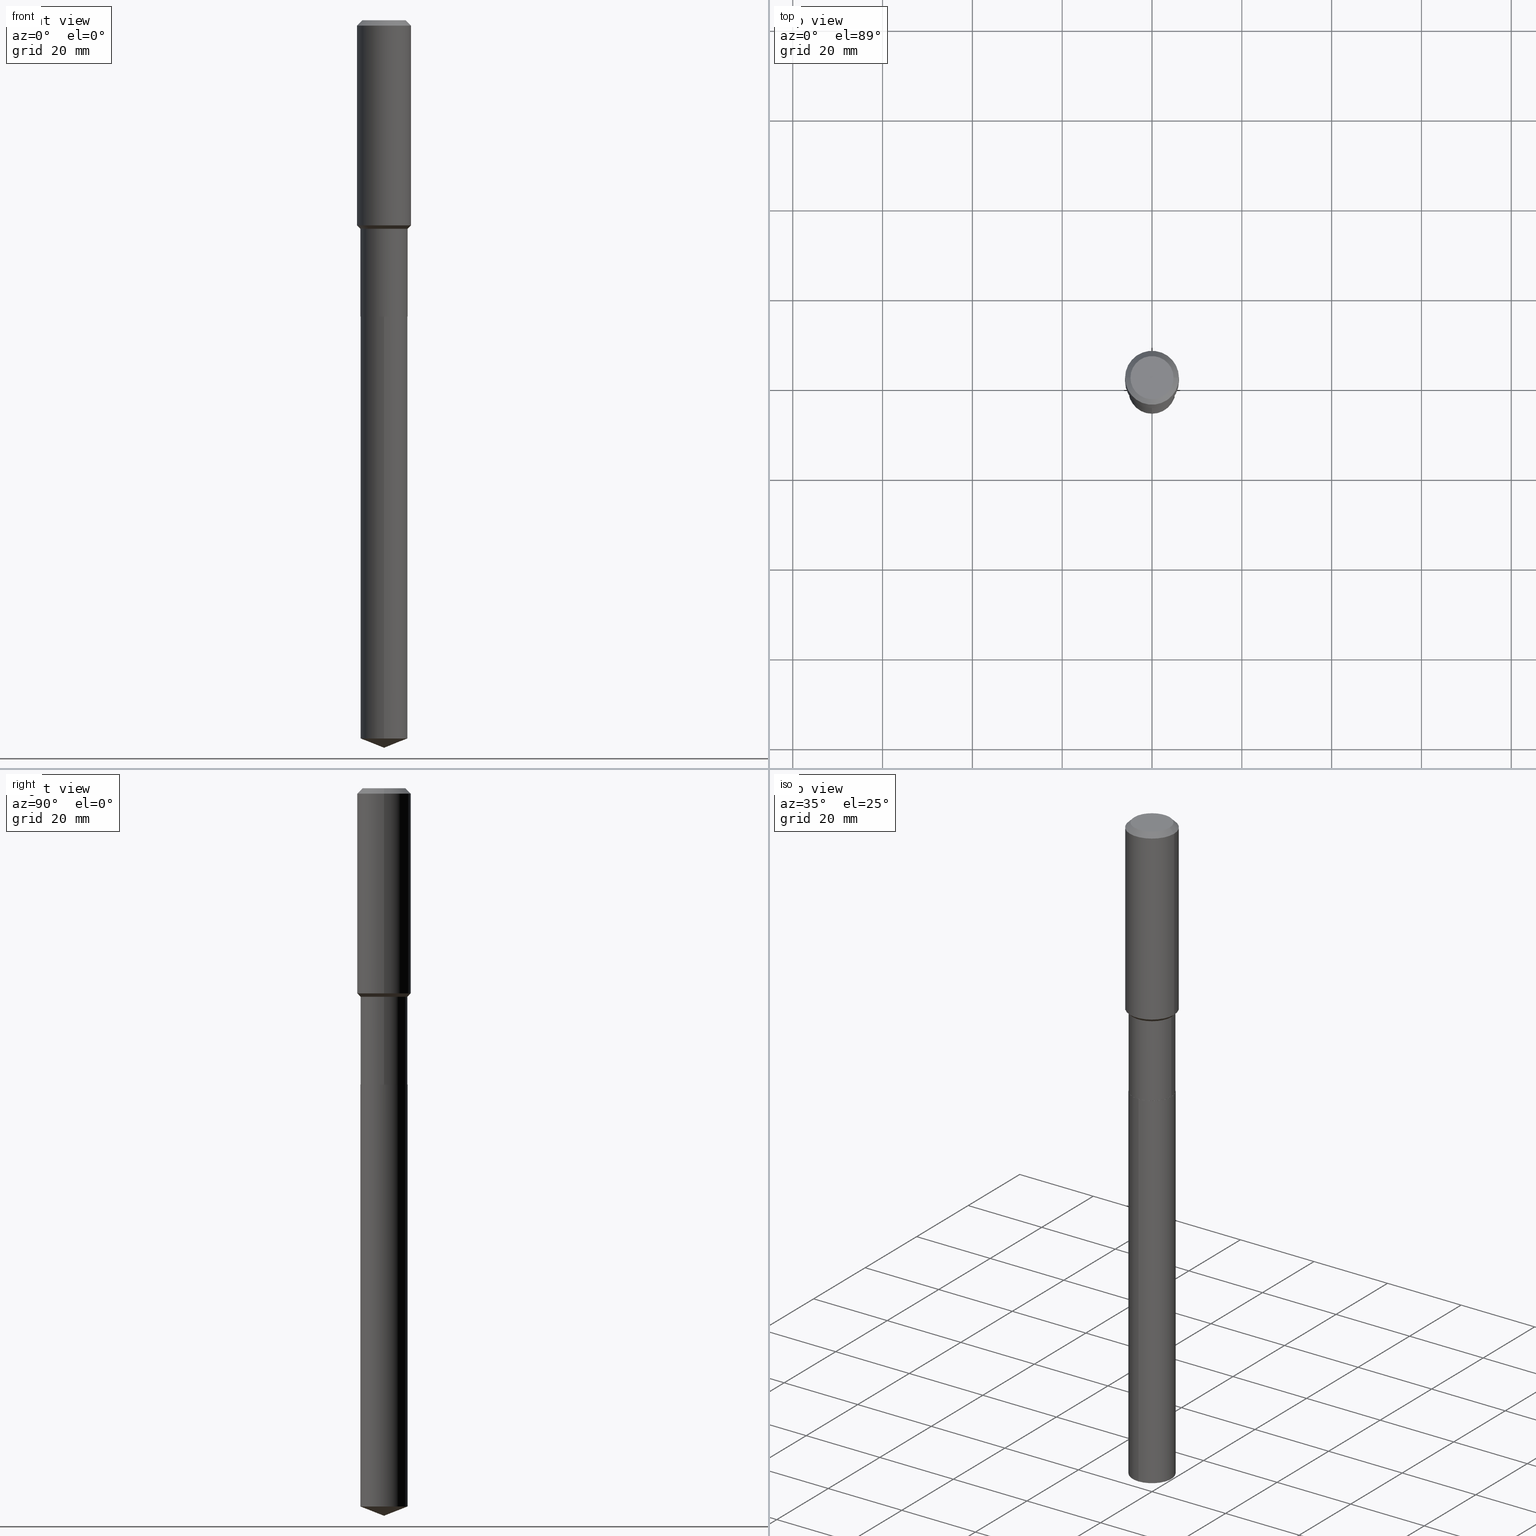
[diagram: canonical four-view strip — front | top / right | iso, engineering-drawing reading convention]
A machine part, canonical four-view strip (front | top / right | iso — engineering-drawing reading convention). The complete STEP part file that produces these views, byte-faithful:
ISO-10303-21;
HEADER;
FILE_DESCRIPTION (( 'STEP AP203' ),
    '1' );
FILE_NAME ('66681.STEP',
    '2024-04-25T03:34:13',
    ( '' ),
    ( '' ),
    'SwSTEP 2.0',
    'SolidWorks 2023',
    '' );
FILE_SCHEMA (( 'CONFIG_CONTROL_DESIGN' ));
ENDSEC;

DATA;
#1 = DIRECTION ( 'NONE',  ( -2.445468806185136597E-29, 3.491481338843145583E-15, 1.000000000000000000 ) ) ;
#2 = DIRECTION ( 'NONE',  ( -2.445468806185136597E-29, 3.491481338843145583E-15, 1.000000000000000000 ) ) ;
#3 = FACE_OUTER_BOUND ( 'NONE', #278, .T. ) ;
#4 = AXIS2_PLACEMENT_3D ( 'NONE', #208, #277, #324 ) ;
#5 = DIRECTION ( 'NONE',  ( -1.000000000000000000, 6.982962677686266711E-15, 0.000000000000000000 ) ) ;
#6 = ORIENTED_EDGE ( 'NONE', *, *, #317, .T. ) ;
#7 = CARTESIAN_POINT ( 'NONE',  ( 6.354306145991460877E-29, -9.072265110850034200E-15, -2.598400000000000709 ) ) ;
#8 = CARTESIAN_POINT ( 'NONE',  ( 0.2361999999999999933, -1.785387205520586782E-15, -0.04724000000000027483 ) ) ;
#9 = ADVANCED_BREP_SHAPE_REPRESENTATION ( '66681', ( #400, #398, #249 ), #129 ) ;
#10 = EDGE_CURVE ( 'NONE', #375, #441, #206, .T. ) ;
#11 = CARTESIAN_POINT ( 'NONE',  ( -0.2361999999999999933, -1.543357719111991223E-15, -0.04724000000000027483 ) ) ;
#12 =( LENGTH_UNIT ( ) NAMED_UNIT ( * ) SI_UNIT ( $, .METRE. ) );
#13 = CC_DESIGN_SECURITY_CLASSIFICATION ( #40, ( #285 ) ) ;
#14 = CARTESIAN_POINT ( 'NONE',  ( -4.713871149261273121E-47, 6.730158695841826722E-33, 1.927594061857931128E-18 ) ) ;
#15 = ADVANCED_FACE ( 'NONE', ( #363 ), #109, .T. ) ;
#16 = ADVANCED_FACE ( 'NONE', ( #404 ), #62, .T. ) ;
#17 = CALENDAR_DATE ( 2024, 24, 4 ) ;
#18 = PERSON_AND_ORGANIZATION ( #288, #362 ) ;
#19 = LINE ( 'NONE', #394, #330 ) ;
#20 = ORIENTED_EDGE ( 'NONE', *, *, #174, .F. ) ;
#21 = CC_DESIGN_APPROVAL ( #451, ( #245 ) ) ;
#22 = COORDINATED_UNIVERSAL_TIME_OFFSET ( 5, 0, .BEHIND. ) ;
#23 = LINE ( 'NONE', #150, #78 ) ;
#24 = ORIENTED_EDGE ( 'NONE', *, *, #239, .F. ) ;
#25 = SHAPE_DEFINITION_REPRESENTATION ( #95, #9 ) ;
#26 = CALENDAR_DATE ( 2024, 24, 4 ) ;
#27 = DIRECTION ( 'NONE',  ( -2.445449169258695004E-29, 3.491509460039474509E-15, 1.000000000000000000 ) ) ;
#28 = ORIENTED_EDGE ( 'NONE', *, *, #321, .F. ) ;
#29 = CIRCLE ( 'NONE', #297, 0.2067000000000000226 ) ;
#30 = CIRCLE ( 'NONE', #64, 0.2067000000000000226 ) ;
#31 = EDGE_CURVE ( 'NONE', #279, #339, #181, .T. ) ;
#32 = CARTESIAN_POINT ( 'NONE',  ( 1.155239464041865331E-30, -1.649375784469511612E-16, -0.04724000000000027483 ) ) ;
#33 = AXIS2_PLACEMENT_3D ( 'NONE', #432, #235, #97 ) ;
#34 = DIRECTION ( 'NONE',  ( -2.445449169258695004E-29, 3.491509460039474509E-15, 1.000000000000000000 ) ) ;
#35 = DIRECTION ( 'NONE',  ( -2.445468806185136597E-29, 3.491481338843145583E-15, 1.000000000000000000 ) ) ;
#36 = VECTOR ( 'NONE', #323, 39.37007874015748143 ) ;
#37 = EDGE_CURVE ( 'NONE', #385, #77, #303, .T. ) ;
#38 = DIRECTION ( 'NONE',  ( 6.982962677686265922E-15, 1.000000000000000000, -3.491509460039474509E-15 ) ) ;
#39 = EDGE_CURVE ( 'NONE', #339, #385, #110, .T. ) ;
#40 = SECURITY_CLASSIFICATION ( '', '', #314 ) ;
#41 = CARTESIAN_POINT ( 'NONE',  ( 6.354306145991460877E-29, -9.072265110850034200E-15, -2.598400000000000709 ) ) ;
#42 = EDGE_LOOP ( 'NONE', ( #189, #6, #395 ) ) ;
#43 = DIRECTION ( 'NONE',  ( -2.445449169258695004E-29, 3.491509460039474509E-15, 1.000000000000000000 ) ) ;
#44 = DIRECTION ( 'NONE',  ( -2.445468806185136877E-29, 3.491481338843145188E-15, 1.000000000000000000 ) ) ;
#45 = ORIENTED_EDGE ( 'NONE', *, *, #359, .F. ) ;
#46 = CARTESIAN_POINT ( 'NONE',  ( 0.2062000000000000222, -1.051215201498894083E-14, -2.598400000000000709 ) ) ;
#47 = CARTESIAN_POINT ( 'NONE',  ( -8.068064506756283072E-28, 1.151925772486896208E-13, 32.99217874015747753 ) ) ;
#48 = ORIENTED_EDGE ( 'NONE', *, *, #486, .F. ) ;
#49 = CARTESIAN_POINT ( 'NONE',  ( -8.068064506756283072E-28, 1.151925772486896208E-13, 32.99217874015747753 ) ) ;
#50 = VECTOR ( 'NONE', #160, 39.37007874015748143 ) ;
#51 = DIRECTION ( 'NONE',  ( -2.445468806185136597E-29, 3.491481338843145583E-15, 1.000000000000000000 ) ) ;
#52 = LINE ( 'NONE', #194, #212 ) ;
#53 = ORIENTED_EDGE ( 'NONE', *, *, #59, .F. ) ;
#54 = DIRECTION ( 'NONE',  ( -2.445468806185136877E-29, 3.491481338843145188E-15, 1.000000000000000000 ) ) ;
#55 = CIRCLE ( 'NONE', #392, 0.2066999999999999116 ) ;
#56 = DIRECTION ( 'NONE',  ( -6.982962677686265133E-15, -1.000000000000000000, 2.643297526525653668E-15 ) ) ;
#57 = EDGE_CURVE ( 'NONE', #352, #339, #271, .T. ) ;
#58 = FACE_OUTER_BOUND ( 'NONE', #481, .T. ) ;
#59 = EDGE_CURVE ( 'NONE', #279, #166, #55, .T. ) ;
#60 = APPLICATION_PROTOCOL_DEFINITION ( 'international standard', 'config_control_design', 1994, #258 ) ;
#61 = MECHANICAL_CONTEXT ( 'NONE', #258, 'mechanical' ) ;
#62 = CONICAL_SURFACE ( 'NONE', #325, 0.2361999999999999933, 0.7853981633974452814 ) ;
#63 = DIRECTION ( 'NONE',  ( 0.7071067811864267805, -2.468850131080992517E-15, 0.7071067811866682540 ) ) ;
#64 = AXIS2_PLACEMENT_3D ( 'NONE', #123, #192, #56 ) ;
#65 = CALENDAR_DATE ( 2024, 24, 4 ) ;
#66 = ORIENTED_EDGE ( 'NONE', *, *, #37, .T. ) ;
#67 = APPROVAL_DATE_TIME ( #315, #122 ) ;
#68 = ADVANCED_FACE ( 'NONE', ( #120 ), #319, .T. ) ;
#69 = APPROVAL ( #397, 'UNSPECIFIED' ) ;
#70 = FACE_OUTER_BOUND ( 'NONE', #42, .T. ) ;
#71 = ORIENTED_EDGE ( 'NONE', *, *, #239, .T. ) ;
#72 = AXIS2_PLACEMENT_3D ( 'NONE', #449, #115, #86 ) ;
#73 = CARTESIAN_POINT ( 'NONE',  ( 4.469583337064576650E-29, -6.381380443003620525E-15, -1.827700000000000768 ) ) ;
#74 = DIRECTION ( 'NONE',  ( 2.445468806185136597E-29, -3.491481338843145583E-15, -1.000000000000000000 ) ) ;
#75 = ORIENTED_EDGE ( 'NONE', *, *, #406, .F. ) ;
#76 = LINE ( 'NONE', #223, #93 ) ;
#77 = VERTEX_POINT ( 'NONE', #299 ) ;
#78 = VECTOR ( 'NONE', #146, 39.37007874015748143 ) ;
#79 = CARTESIAN_POINT ( 'NONE',  ( 0.000000000000000000, 0.000000000000000000, 0.000000000000000000 ) ) ;
#80 = ORIENTED_EDGE ( 'NONE', *, *, #307, .T. ) ;
#81 = DIRECTION ( 'NONE',  ( -2.445468806185136597E-29, 3.491481338843145583E-15, 1.000000000000000000 ) ) ;
#82 = CYLINDRICAL_SURFACE ( 'NONE', #251, 0.2362000000000001043 ) ;
#83 = EDGE_CURVE ( 'NONE', #441, #279, #76, .T. ) ;
#84 = ORIENTED_EDGE ( 'NONE', *, *, #487, .T. ) ;
#85 = ADVANCED_FACE ( 'NONE', ( #380 ), #372, .F. ) ;
#86 = DIRECTION ( 'NONE',  ( 1.000000000000000000, -6.982962677686265922E-15, 4.876176775795935793E-29 ) ) ;
#87 = CLOSED_SHELL ( 'NONE', ( #15, #423, #141, #322, #91 ) ) ;
#88 = EDGE_LOOP ( 'NONE', ( #281, #420, #335, #215 ) ) ;
#89 = CARTESIAN_POINT ( 'NONE',  ( 4.469583337064576650E-29, -6.381380443003620525E-15, -1.827700000000000768 ) ) ;
#90 = VECTOR ( 'NONE', #410, 39.37007874015748854 ) ;
#91 = ADVANCED_FACE ( 'NONE', ( #116 ), #454, .F. ) ;
#92 = CARTESIAN_POINT ( 'NONE',  ( 6.354306145991460877E-29, -9.072265110850034200E-15, -2.598400000000000709 ) ) ;
#93 = VECTOR ( 'NONE', #44, 39.37007874015748143 ) ;
#94 = DATE_AND_TIME ( #26, #173 ) ;
#95 = PRODUCT_DEFINITION_SHAPE ( 'NONE', 'NONE',  #245 ) ;
#96 = ORIENTED_EDGE ( 'NONE', *, *, #57, .F. ) ;
#97 = DIRECTION ( 'NONE',  ( 1.000000000000000000, -6.982962677686266711E-15, 0.000000000000000000 ) ) ;
#98 = PERSON_AND_ORGANIZATION_ROLE ( 'classification_officer' ) ;
#99 = FACE_OUTER_BOUND ( 'NONE', #266, .T. ) ;
#100 = DATE_AND_TIME ( #17, #316 ) ;
#101 = EDGE_CURVE ( 'NONE', #166, #279, #152, .T. ) ;
#102 = ORIENTED_EDGE ( 'NONE', *, *, #101, .F. ) ;
#103 = DATE_TIME_ROLE ( 'creation_date' ) ;
#104 = ORIENTED_EDGE ( 'NONE', *, *, #59, .T. ) ;
#105 = CC_DESIGN_APPROVAL ( #122, ( #40 ) ) ;
#106 = ADVANCED_FACE ( 'NONE', ( #262 ), #82, .T. ) ;
#107 = CARTESIAN_POINT ( 'NONE',  ( 4.397442007282113695E-29, -6.278381743507746292E-15, -1.798200000000000465 ) ) ;
#108 = PRODUCT_RELATED_PRODUCT_CATEGORY ( 'detail', '', ( #168 ) ) ;
#109 = CYLINDRICAL_SURFACE ( 'NONE', #253, 0.2067000000000000226 ) ;
#110 = LINE ( 'NONE', #356, #474 ) ;
#111 = CC_DESIGN_APPROVAL ( #69, ( #285 ) ) ;
#112 = DIRECTION ( 'NONE',  ( 1.000000000000000000, -6.982962677686266711E-15, 0.000000000000000000 ) ) ;
#113 = AXIS2_PLACEMENT_3D ( 'NONE', #334, #342, #38 ) ;
#114 = VERTEX_POINT ( 'NONE', #228 ) ;
#115 = DIRECTION ( 'NONE',  ( -2.445468806185136597E-29, 3.491481338843145583E-15, 1.000000000000000000 ) ) ;
#116 = FACE_OUTER_BOUND ( 'NONE', #460, .T. ) ;
#117 = EDGE_LOOP ( 'NONE', ( #158, #124, #102, #48 ) ) ;
#118 = DIRECTION ( 'NONE',  ( 1.000000000000000000, -6.982962677686265922E-15, 4.876176775795935793E-29 ) ) ;
#119 = EDGE_CURVE ( 'NONE', #339, #352, #350, .T. ) ;
#120 = FACE_OUTER_BOUND ( 'NONE', #306, .T. ) ;
#121 = VERTEX_POINT ( 'NONE', #435 ) ;
#122 = APPROVAL ( #434, 'UNSPECIFIED' ) ;
#123 = CARTESIAN_POINT ( 'NONE',  ( 6.354306145991460877E-29, -9.072265110850034200E-15, -2.598400000000000709 ) ) ;
#124 = ORIENTED_EDGE ( 'NONE', *, *, #83, .T. ) ;
#125 = DIRECTION ( 'NONE',  ( -2.445468806185136597E-29, 3.491481338843145583E-15, 1.000000000000000000 ) ) ;
#126 = DIRECTION ( 'NONE',  ( 1.000000000000000000, -6.982962677686266711E-15, 0.000000000000000000 ) ) ;
#127 = ORIENTED_EDGE ( 'NONE', *, *, #305, .F. ) ;
#128 = DIRECTION ( 'NONE',  ( 1.000000000000000000, -6.982962677686262766E-15, 0.000000000000000000 ) ) ;
#129 =( GEOMETRIC_REPRESENTATION_CONTEXT ( 3 ) GLOBAL_UNCERTAINTY_ASSIGNED_CONTEXT ( ( #136 ) ) GLOBAL_UNIT_ASSIGNED_CONTEXT ( ( #472, #139, #137 ) ) REPRESENTATION_CONTEXT ( 'NONE', 'WORKASPACE' ) );
#130 = DIRECTION ( 'NONE',  ( 1.000000000000000000, -6.982962677686266711E-15, 4.876176775795935793E-29 ) ) ;
#131 = ORIENTED_EDGE ( 'NONE', *, *, #346, .T. ) ;
#132 = CARTESIAN_POINT ( 'NONE',  ( -0.2062000000000000222, -7.604476762538596061E-15, -2.598400000000000709 ) ) ;
#133 = LENGTH_MEASURE_WITH_UNIT ( LENGTH_MEASURE( 0.02539999999999999897 ), #12 );
#134 = COORDINATED_UNIVERSAL_TIME_OFFSET ( 5, 0, .BEHIND. ) ;
#135 = AXIS2_PLACEMENT_3D ( 'NONE', #79, #225, #118 ) ;
#136 = UNCERTAINTY_MEASURE_WITH_UNIT (LENGTH_MEASURE( 1.000000000000000082E-05 ), #472, 'distance_accuracy_value', 'NONE');
#137 =( NAMED_UNIT ( * ) SI_UNIT ( $, .STERADIAN. ) SOLID_ANGLE_UNIT ( ) );
#138 = DIRECTION ( 'NONE',  ( 1.000000000000000000, -6.982962677686265133E-15, 0.000000000000000000 ) ) ;
#139 =( NAMED_UNIT ( * ) PLANE_ANGLE_UNIT ( ) SI_UNIT ( $, .RADIAN. ) );
#140 = ORIENTED_EDGE ( 'NONE', *, *, #156, .T. ) ;
#141 = ADVANCED_FACE ( 'NONE', ( #70 ), #182, .T. ) ;
#142 = DIRECTION ( 'NONE',  ( -6.982962677686265133E-15, -1.000000000000000000, 2.643297526525653668E-15 ) ) ;
#143 = ORIENTED_EDGE ( 'NONE', *, *, #270, .T. ) ;
#144 = CARTESIAN_POINT ( 'NONE',  ( 1.155239464041865331E-30, -1.649375784469511612E-16, -0.04724000000000027483 ) ) ;
#145 = AXIS2_PLACEMENT_3D ( 'NONE', #213, #445, #254 ) ;
#146 = DIRECTION ( 'NONE',  ( -2.445449169258695004E-29, 3.491509460039474509E-15, 1.000000000000000000 ) ) ;
#147 = ORIENTED_EDGE ( 'NONE', *, *, #486, .T. ) ;
#148 = VECTOR ( 'NONE', #54, 39.37007874015748143 ) ;
#149 = CC_DESIGN_DATE_AND_TIME_ASSIGNMENT ( #94, #176, ( #40 ) ) ;
#150 = CARTESIAN_POINT ( 'NONE',  ( 1.468691834816190551E-15, 0.2066999999999909188, -2.598400000000001597 ) ) ;
#151 = VERTEX_POINT ( 'NONE', #443 ) ;
#152 = CIRCLE ( 'NONE', #415, 0.2066999999999999116 ) ;
#153 = FACE_OUTER_BOUND ( 'NONE', #344, .T. ) ;
#154 = VERTEX_POINT ( 'NONE', #446 ) ;
#155 = CARTESIAN_POINT ( 'NONE',  ( -9.427742298522546243E-47, 1.346031739168365344E-32, 3.855188123715862256E-18 ) ) ;
#156 = EDGE_CURVE ( 'NONE', #436, #151, #186, .T. ) ;
#157 = DIRECTION ( 'NONE',  ( 0.7071067811865471286, -2.468850131082252722E-15, 0.7071067811865479058 ) ) ;
#158 = ORIENTED_EDGE ( 'NONE', *, *, #10, .T. ) ;
#159 = APPROVAL_PERSON_ORGANIZATION ( #202, #451, #205 ) ;
#160 = DIRECTION ( 'NONE',  ( -2.445468806185136877E-29, 3.491481338843145188E-15, 1.000000000000000000 ) ) ;
#161 = VERTEX_POINT ( 'NONE', #478 ) ;
#162 = CARTESIAN_POINT ( 'NONE',  ( 6.353083411588368076E-29, -9.070519370180611907E-15, -2.597900000000000542 ) ) ;
#163 = ORIENTED_EDGE ( 'NONE', *, *, #383, .T. ) ;
#164 = CC_DESIGN_PERSON_AND_ORGANIZATION_ASSIGNMENT ( #269, #429, ( #285 ) ) ;
#165 = CARTESIAN_POINT ( 'NONE',  ( 0.2362000000000001043, -1.649375784469496920E-15, 1.151752954443000508E-29 ) ) ;
#166 = VERTEX_POINT ( 'NONE', #338 ) ;
#167 = CIRCLE ( 'NONE', #340, 0.2067000000000000226 ) ;
#168 = PRODUCT ( '66681', '66681', '', ( #61 ) ) ;
#169 = DIRECTION ( 'NONE',  ( 2.438088387897960049E-29, -3.491481338843145188E-15, -1.000000000000000000 ) ) ;
#170 = CALENDAR_DATE ( 2024, 24, 4 ) ;
#171 = CIRCLE ( 'NONE', #204, 0.2067000000000000226 ) ;
#172 = PERSON_AND_ORGANIZATION_ROLE ( 'creator' ) ;
#173 = LOCAL_TIME ( 23, 34, 13.00000000000000000, #134 ) ;
#174 = EDGE_CURVE ( 'NONE', #77, #385, #458, .T. ) ;
#175 = ORIENTED_EDGE ( 'NONE', *, *, #336, .F. ) ;
#176 = DATE_TIME_ROLE ( 'classification_date' ) ;
#177 = DIRECTION ( 'NONE',  ( -6.982962677686266711E-15, -1.000000000000000000, 3.498627837350010928E-15 ) ) ;
#178 = ORIENTED_EDGE ( 'NONE', *, *, #257, .T. ) ;
#179 = ORIENTED_EDGE ( 'NONE', *, *, #83, .F. ) ;
#180 = CONICAL_SURFACE ( 'NONE', #224, 0.2066999999999999116, 0.7853981633974477239 ) ;
#181 = LINE ( 'NONE', #447, #36 ) ;
#182 = CONICAL_SURFACE ( 'NONE', #480, 99.94676754583977640, 1.195550537616118847 ) ;
#183 = ORIENTED_EDGE ( 'NONE', *, *, #369, .F. ) ;
#184 = CARTESIAN_POINT ( 'NONE',  ( 6.354306145991460877E-29, -9.072265110850034200E-15, -2.598400000000000709 ) ) ;
#185 = ADVANCED_FACE ( 'NONE', ( #99 ), #244, .T. ) ;
#186 = CIRCLE ( 'NONE', #236, 0.1889600000000000168 ) ;
#187 = CC_DESIGN_PERSON_AND_ORGANIZATION_ASSIGNMENT ( #470, #98, ( #40 ) ) ;
#188 = CARTESIAN_POINT ( 'NONE',  ( -0.2066999999999999671, -6.257258071775987591E-15, -2.597900000000000542 ) ) ;
#189 = ORIENTED_EDGE ( 'NONE', *, *, #383, .F. ) ;
#190 = DIRECTION ( 'NONE',  ( -2.445468806185136597E-29, 3.491481338843145583E-15, 1.000000000000000000 ) ) ;
#191 = CONICAL_SURFACE ( 'NONE', #355, 99.94676754583977640, 1.195550537616118847 ) ;
#192 = DIRECTION ( 'NONE',  ( -2.445449169258695004E-29, 3.491509460039474509E-15, 1.000000000000000000 ) ) ;
#193 = CARTESIAN_POINT ( 'NONE',  ( 1.155239464041865331E-30, -1.649375784469511612E-16, -0.04724000000000027483 ) ) ;
#194 = CARTESIAN_POINT ( 'NONE',  ( -1.443378385477687712E-15, -0.2067000000000090987, -2.598400000000000265 ) ) ;
#195 = ORIENTED_EDGE ( 'NONE', *, *, #283, .F. ) ;
#196 = DIRECTION ( 'NONE',  ( -6.982962677686266711E-15, -1.000000000000000000, 3.498627837350010928E-15 ) ) ;
#197 = AXIS2_PLACEMENT_3D ( 'NONE', #144, #284, #112 ) ;
#198 = EDGE_LOOP ( 'NONE', ( #255, #104, #463, #358 ) ) ;
#199 = LOCAL_TIME ( 23, 34, 13.00000000000000000, #248 ) ;
#200 = DIRECTION ( 'NONE',  ( -2.445468806185136597E-29, 3.491481338843145583E-15, 1.000000000000000000 ) ) ;
#201 = ORIENTED_EDGE ( 'NONE', *, *, #399, .T. ) ;
#202 = PERSON_AND_ORGANIZATION ( #288, #362 ) ;
#203 = CC_DESIGN_PERSON_AND_ORGANIZATION_ASSIGNMENT ( #18, #438, ( #245 ) ) ;
#204 = AXIS2_PLACEMENT_3D ( 'NONE', #440, #219, #331 ) ;
#205 = APPROVAL_ROLE ( '' ) ;
#206 = CIRCLE ( 'NONE', #145, 0.2067000000000000226 ) ;
#207 = VECTOR ( 'NONE', #384, 39.37007874015748143 ) ;
#208 = CARTESIAN_POINT ( 'NONE',  ( -9.427742298522546243E-47, 1.346031739168365344E-32, 3.855188123715862256E-18 ) ) ;
#209 = ORIENTED_EDGE ( 'NONE', *, *, #31, .T. ) ;
#210 = DESIGN_CONTEXT ( 'detailed design', #347, 'design' ) ;
#211 = PERSON_AND_ORGANIZATION ( #288, #362 ) ;
#212 = VECTOR ( 'NONE', #428, 39.37007874015748143 ) ;
#213 = CARTESIAN_POINT ( 'NONE',  ( 6.353083411588368076E-29, -9.070519370180611907E-15, -2.597900000000000542 ) ) ;
#214 = ORIENTED_EDGE ( 'NONE', *, *, #448, .T. ) ;
#215 = ORIENTED_EDGE ( 'NONE', *, *, #37, .F. ) ;
#216 = AXIS2_PLACEMENT_3D ( 'NONE', #7, #190, #427 ) ;
#217 = CARTESIAN_POINT ( 'NONE',  ( 1.539776964222985142E-28, -2.198414189224705960E-14, -6.296478704690392725 ) ) ;
#218 = DIRECTION ( 'NONE',  ( -2.445468806185136877E-29, 3.491481338843145188E-15, 1.000000000000000000 ) ) ;
#219 = DIRECTION ( 'NONE',  ( -2.445449169258695004E-29, 3.491509460039474509E-15, 1.000000000000000000 ) ) ;
#220 = DIRECTION ( 'NONE',  ( 1.000000000000000000, -6.982962677686266711E-15, 4.876176775795935793E-29 ) ) ;
#221 = DIRECTION ( 'NONE',  ( -6.982962677686265133E-15, -1.000000000000000000, 5.286595053051307336E-15 ) ) ;
#222 = EDGE_CURVE ( 'NONE', #121, #161, #52, .T. ) ;
#223 = CARTESIAN_POINT ( 'NONE',  ( -0.2066999999999999393, 1.468691834816126653E-15, -1.016743883155688725E-29 ) ) ;
#224 = AXIS2_PLACEMENT_3D ( 'NONE', #89, #333, #300 ) ;
#225 = DIRECTION ( 'NONE',  ( -2.445468806185136597E-29, 3.491481338843145583E-15, 1.000000000000000000 ) ) ;
#226 = ORIENTED_EDGE ( 'NONE', *, *, #283, .T. ) ;
#227 = FACE_OUTER_BOUND ( 'NONE', #413, .T. ) ;
#228 = CARTESIAN_POINT ( 'NONE',  ( 1.559683025661503327E-28, -2.226849818518576806E-14, -6.377900000000001235 ) ) ;
#229 = CARTESIAN_POINT ( 'NONE',  ( -0.2361999999999999933, 1.484438206022545019E-15, -0.04724000000000027483 ) ) ;
#230 = CARTESIAN_POINT ( 'NONE',  ( 4.397442007282113695E-29, -6.278381743507746292E-15, -1.798200000000000465 ) ) ;
#231 = ORIENTED_EDGE ( 'NONE', *, *, #307, .F. ) ;
#232 = CIRCLE ( 'NONE', #471, 0.2062000000000000222 ) ;
#233 = CARTESIAN_POINT ( 'NONE',  ( 1.468691834816282059E-15, 0.2066999999999909743, -2.598400000000001597 ) ) ;
#234 = ADVANCED_FACE ( 'NONE', ( #58 ), #343, .F. ) ;
#235 = DIRECTION ( 'NONE',  ( -2.445468806185136597E-29, 3.491481338843145583E-15, 1.000000000000000000 ) ) ;
#236 = AXIS2_PLACEMENT_3D ( 'NONE', #155, #35, #328 ) ;
#237 = LINE ( 'NONE', #229, #241 ) ;
#238 = PERSON_AND_ORGANIZATION ( #288, #362 ) ;
#239 = EDGE_CURVE ( 'NONE', #151, #77, #272, .T. ) ;
#240 = APPROVAL_ROLE ( '' ) ;
#241 = VECTOR ( 'NONE', #294, 39.37007874015748143 ) ;
#242 = CARTESIAN_POINT ( 'NONE',  ( 0.000000000000000000, 0.000000000000000000, 0.000000000000000000 ) ) ;
#243 = APPROVAL_ROLE ( '' ) ;
#244 = CYLINDRICAL_SURFACE ( 'NONE', #311, 0.2362000000000001043 ) ;
#245 = PRODUCT_DEFINITION ( 'UNKNOWN', '', #285, #210 ) ;
#246 = LINE ( 'NONE', #483, #280 ) ;
#247 = ORIENTED_EDGE ( 'NONE', *, *, #305, .T. ) ;
#248 = COORDINATED_UNIVERSAL_TIME_OFFSET ( 5, 0, .BEHIND. ) ;
#249 = AXIS2_PLACEMENT_3D ( 'NONE', #273, #276, #475 ) ;
#250 = ORIENTED_EDGE ( 'NONE', *, *, #222, .T. ) ;
#251 = AXIS2_PLACEMENT_3D ( 'NONE', #419, #51, #220 ) ;
#252 = DIRECTION ( 'NONE',  ( 1.000000000000000000, -6.982962677686266711E-15, 0.000000000000000000 ) ) ;
#253 = AXIS2_PLACEMENT_3D ( 'NONE', #320, #286, #142 ) ;
#254 = DIRECTION ( 'NONE',  ( 1.000000000000000000, -6.982962677686269866E-15, 0.000000000000000000 ) ) ;
#255 = ORIENTED_EDGE ( 'NONE', *, *, #31, .F. ) ;
#256 = VERTEX_POINT ( 'NONE', #132 ) ;
#257 = EDGE_CURVE ( 'NONE', #154, #121, #171, .T. ) ;
#258 = APPLICATION_CONTEXT ( 'configuration controlled 3d designs of mechanical parts and assemblies' ) ;
#259 = CARTESIAN_POINT ( 'NONE',  ( 1.559693320064520861E-28, -2.226835204495268597E-14, -6.377900000000001235 ) ) ;
#260 = CIRCLE ( 'NONE', #4, 0.1889600000000000168 ) ;
#261 = CARTESIAN_POINT ( 'NONE',  ( 6.354306145991460877E-29, -9.072265110850034200E-15, -2.598400000000000709 ) ) ;
#262 = FACE_OUTER_BOUND ( 'NONE', #88, .T. ) ;
#263 = ORIENTED_EDGE ( 'NONE', *, *, #270, .F. ) ;
#264 = LINE ( 'NONE', #165, #148 ) ;
#265 = DIRECTION ( 'NONE',  ( 2.445468806185136597E-29, -3.491481338843145583E-15, -1.000000000000000000 ) ) ;
#266 = EDGE_LOOP ( 'NONE', ( #409, #326, #20, #75 ) ) ;
#267 = DIRECTION ( 'NONE',  ( 1.000000000000000000, -6.982962677686269866E-15, 0.000000000000000000 ) ) ;
#268 = LINE ( 'NONE', #337, #50 ) ;
#269 = PERSON_AND_ORGANIZATION ( #288, #362 ) ;
#270 = EDGE_CURVE ( 'NONE', #121, #154, #418, .T. ) ;
#271 = CIRCLE ( 'NONE', #467, 0.2362000000000002153 ) ;
#272 = LINE ( 'NONE', #8, #466 ) ;
#273 = CARTESIAN_POINT ( 'NONE',  ( 0.000000000000000000, 0.000000000000000000, 0.000000000000000000 ) ) ;
#274 = PERSON_AND_ORGANIZATION ( #288, #362 ) ;
#275 = AXIS2_PLACEMENT_3D ( 'NONE', #184, #291, #329 ) ;
#276 = DIRECTION ( 'NONE',  ( 0.000000000000000000, 0.000000000000000000, 1.000000000000000000 ) ) ;
#277 = DIRECTION ( 'NONE',  ( -2.445468806185136597E-29, 3.491481338843145583E-15, 1.000000000000000000 ) ) ;
#278 = EDGE_LOOP ( 'NONE', ( #430, #163, #263 ) ) ;
#279 = VERTEX_POINT ( 'NONE', #370 ) ;
#280 = VECTOR ( 'NONE', #488, 39.37007874015748143 ) ;
#281 = ORIENTED_EDGE ( 'NONE', *, *, #39, .F. ) ;
#282 = ORIENTED_EDGE ( 'NONE', *, *, #101, .T. ) ;
#283 = EDGE_CURVE ( 'NONE', #161, #378, #29, .T. ) ;
#284 = DIRECTION ( 'NONE',  ( -2.445468806185136597E-29, 3.491481338843145583E-15, 1.000000000000000000 ) ) ;
#285 = PRODUCT_DEFINITION_FORMATION_WITH_SPECIFIED_SOURCE ( 'ANY', '', #168, .NOT_KNOWN. ) ;
#286 = DIRECTION ( 'NONE',  ( -2.445449169258695004E-29, 3.491509460039474509E-15, 1.000000000000000000 ) ) ;
#287 = ADVANCED_FACE ( 'NONE', ( #403 ), #462, .T. ) ;
#288 = PERSON ( 'UNSPECIFIED', 'UNSPECIFIED', 'UNSPECIFIED', ('UNSPECIFIED'), ('UNSPECIFIED'), ('UNSPECIFIED') ) ;
#289 = CYLINDRICAL_SURFACE ( 'NONE', #72, 0.2066999999999999393 ) ;
#290 = ORIENTED_EDGE ( 'NONE', *, *, #487, .F. ) ;
#291 = DIRECTION ( 'NONE',  ( -2.445449169258695004E-29, 3.491509460039474509E-15, 1.000000000000000000 ) ) ;
#292 = DIRECTION ( 'NONE',  ( 1.000000000000000000, -6.982962677686265922E-15, 4.876176775795935793E-29 ) ) ;
#293 = EDGE_LOOP ( 'NONE', ( #214, #201, #455, #28 ) ) ;
#294 = DIRECTION ( 'NONE',  ( -0.7071067811865453523, 2.468850131082234184E-15, -0.7071067811865496822 ) ) ;
#295 = DIRECTION ( 'NONE',  ( 1.000000000000000000, -6.982962677686265133E-15, 0.000000000000000000 ) ) ;
#296 = ORIENTED_EDGE ( 'NONE', *, *, #156, .F. ) ;
#297 = AXIS2_PLACEMENT_3D ( 'NONE', #41, #34, #476 ) ;
#298 = CARTESIAN_POINT ( 'NONE',  ( 0.2362000000000002153, -7.927757527977242818E-15, -1.798200000000000465 ) ) ;
#299 = CARTESIAN_POINT ( 'NONE',  ( 0.2361999999999999933, -1.814313362916447440E-15, -0.04724000000000027483 ) ) ;
#300 = DIRECTION ( 'NONE',  ( 1.000000000000000000, -6.982962677686265133E-15, 0.000000000000000000 ) ) ;
#301 = DIRECTION ( 'NONE',  ( -2.445468806185136597E-29, 3.491481338843145583E-15, 1.000000000000000000 ) ) ;
#302 = ORIENTED_EDGE ( 'NONE', *, *, #346, .F. ) ;
#303 = CIRCLE ( 'NONE', #197, 0.2361999999999999933 ) ;
#304 = FACE_OUTER_BOUND ( 'NONE', #416, .T. ) ;
#305 = EDGE_CURVE ( 'NONE', #154, #378, #23, .T. ) ;
#306 = EDGE_LOOP ( 'NONE', ( #231, #71, #484, #45 ) ) ;
#307 = EDGE_CURVE ( 'NONE', #151, #436, #260, .T. ) ;
#308 = LOCAL_TIME ( 23, 34, 13.00000000000000000, #391 ) ;
#309 = LINE ( 'NONE', #422, #207 ) ;
#310 = DIRECTION ( 'NONE',  ( -1.000000000000000000, 6.982962677686265922E-15, -4.876176775795935793E-29 ) ) ;
#311 = AXIS2_PLACEMENT_3D ( 'NONE', #242, #200, #130 ) ;
#312 = APPROVAL_STATUS ( 'not_yet_approved' ) ;
#313 = EDGE_LOOP ( 'NONE', ( #179, #131, #147, #53 ) ) ;
#314 = SECURITY_CLASSIFICATION_LEVEL ( 'unclassified' ) ;
#315 = DATE_AND_TIME ( #353, #308 ) ;
#316 = LOCAL_TIME ( 23, 34, 13.00000000000000000, #351 ) ;
#317 = EDGE_CURVE ( 'NONE', #114, #121, #246, .T. ) ;
#318 = APPLICATION_PROTOCOL_DEFINITION ( 'international standard', 'config_control_design', 1994, #347 ) ;
#319 = CONICAL_SURFACE ( 'NONE', #407, 0.2361999999999999933, 0.7853981633974452814 ) ;
#320 = CARTESIAN_POINT ( 'NONE',  ( 6.354306145991460877E-29, -9.072265110850034200E-15, -2.598400000000000709 ) ) ;
#321 = EDGE_CURVE ( 'NONE', #477, #375, #19, .T. ) ;
#322 = ADVANCED_FACE ( 'NONE', ( #153 ), #366, .T. ) ;
#323 = DIRECTION ( 'NONE',  ( -0.7071067811865471286, 7.493145998870352582E-15, 0.7071067811865479058 ) ) ;
#324 = DIRECTION ( 'NONE',  ( 1.000000000000000000, -6.982962677686266711E-15, 4.876185090822587894E-29 ) ) ;
#325 = AXIS2_PLACEMENT_3D ( 'NONE', #32, #74, #444 ) ;
#326 = ORIENTED_EDGE ( 'NONE', *, *, #39, .T. ) ;
#327 = ADVANCED_FACE ( 'NONE', ( #485 ), #289, .T. ) ;
#328 = DIRECTION ( 'NONE',  ( 1.000000000000000000, -6.982962677686266711E-15, 4.876185090822587894E-29 ) ) ;
#329 = DIRECTION ( 'NONE',  ( -6.982962677686265133E-15, -1.000000000000000000, 2.643297526525653668E-15 ) ) ;
#330 = VECTOR ( 'NONE', #63, 39.37007874015748143 ) ;
#331 = DIRECTION ( 'NONE',  ( -6.982962677686265133E-15, -1.000000000000000000, 5.286595053051307336E-15 ) ) ;
#332 = ORIENTED_EDGE ( 'NONE', *, *, #359, .T. ) ;
#333 = DIRECTION ( 'NONE',  ( -2.445468806185136597E-29, 3.491481338843145583E-15, 1.000000000000000000 ) ) ;
#334 = CARTESIAN_POINT ( 'NONE',  ( 6.354306145991460877E-29, -9.072265110850034200E-15, -2.598400000000000709 ) ) ;
#335 = ORIENTED_EDGE ( 'NONE', *, *, #406, .T. ) ;
#336 = EDGE_CURVE ( 'NONE', #256, #477, #412, .T. ) ;
#337 = CARTESIAN_POINT ( 'NONE',  ( 0.2066999999999999393, -1.443378385477750821E-15, 1.007905739557019640E-29 ) ) ;
#338 = CARTESIAN_POINT ( 'NONE',  ( 0.2066999999999999116, -7.824758828481370163E-15, -1.827700000000000768 ) ) ;
#339 = VERTEX_POINT ( 'NONE', #459 ) ;
#340 = AXIS2_PLACEMENT_3D ( 'NONE', #162, #125, #267 ) ;
#341 = FACE_OUTER_BOUND ( 'NONE', #293, .T. ) ;
#342 = DIRECTION ( 'NONE',  ( 2.445449169258694724E-29, -3.491509460039474509E-15, -1.000000000000000000 ) ) ;
#343 = PLANE ( 'NONE',  #489 ) ;
#344 = EDGE_LOOP ( 'NONE', ( #127, #178, #250, #290 ) ) ;
#345 = FACE_OUTER_BOUND ( 'NONE', #313, .T. ) ;
#346 = EDGE_CURVE ( 'NONE', #441, #375, #167, .T. ) ;
#347 = APPLICATION_CONTEXT ( 'configuration controlled 3d designs of mechanical parts and assemblies' ) ;
#348 = EDGE_LOOP ( 'NONE', ( #24, #296, #332, #66 ) ) ;
#349 = APPROVAL_PERSON_ORGANIZATION ( #211, #69, #240 ) ;
#350 = CIRCLE ( 'NONE', #390, 0.2362000000000002153 ) ;
#351 = COORDINATED_UNIVERSAL_TIME_OFFSET ( 5, 0, .BEHIND. ) ;
#352 = VERTEX_POINT ( 'NONE', #298 ) ;
#353 = CALENDAR_DATE ( 2024, 24, 4 ) ;
#354 = ORIENTED_EDGE ( 'NONE', *, *, #321, .T. ) ;
#355 = AXIS2_PLACEMENT_3D ( 'NONE', #49, #43, #196 ) ;
#356 = CARTESIAN_POINT ( 'NONE',  ( -0.2362000000000001043, 1.678301941865357380E-15, -1.161852468318209317E-29 ) ) ;
#357 = APPROVAL_DATE_TIME ( #431, #69 ) ;
#358 = ORIENTED_EDGE ( 'NONE', *, *, #119, .F. ) ;
#359 = EDGE_CURVE ( 'NONE', #436, #385, #237, .T. ) ;
#360 = CC_DESIGN_PERSON_AND_ORGANIZATION_ASSIGNMENT ( #389, #172, ( #285 ) ) ;
#361 = ORIENTED_EDGE ( 'NONE', *, *, #399, .F. ) ;
#362 = ORGANIZATION ( 'UNSPECIFIED', 'UNSPECIFIED', '' ) ;
#363 = FACE_OUTER_BOUND ( 'NONE', #381, .T. ) ;
#364 = DIRECTION ( 'NONE',  ( -2.445449169258695004E-29, 3.491509460039474509E-15, 1.000000000000000000 ) ) ;
#365 = DIRECTION ( 'NONE',  ( -2.445468806185136597E-29, 3.491481338843145583E-15, 1.000000000000000000 ) ) ;
#366 = CYLINDRICAL_SURFACE ( 'NONE', #275, 0.2067000000000000226 ) ;
#367 = CLOSED_SHELL ( 'NONE', ( #376, #68, #185, #411, #327, #437, #287, #106, #16, #234, #85, #469 ) ) ;
#368 = DIRECTION ( 'NONE',  ( 1.000000000000000000, -6.982962677686265133E-15, 0.000000000000000000 ) ) ;
#369 = EDGE_CURVE ( 'NONE', #166, #352, #414, .T. ) ;
#370 = CARTESIAN_POINT ( 'NONE',  ( -0.2066999999999999116, -6.257258071775988380E-15, -1.827700000000000768 ) ) ;
#371 = CONICAL_SURFACE ( 'NONE', #382, 0.2062000000000000222, 0.7853981633972775267 ) ;
#372 = PLANE ( 'NONE',  #402 ) ;
#373 = ORIENTED_EDGE ( 'NONE', *, *, #222, .F. ) ;
#374 = DIRECTION ( 'NONE',  ( 1.000000000000000000, -6.982962677686262766E-15, 0.000000000000000000 ) ) ;
#375 = VERTEX_POINT ( 'NONE', #453 ) ;
#376 = ADVANCED_FACE ( 'NONE', ( #341 ), #388, .T. ) ;
#377 = CARTESIAN_POINT ( 'NONE',  ( 6.354306145991460877E-29, -9.072265110850034200E-15, -2.598400000000000709 ) ) ;
#378 = VERTEX_POINT ( 'NONE', #233 ) ;
#379 = DIRECTION ( 'NONE',  ( -2.445468806185136597E-29, 3.491481338843145583E-15, 1.000000000000000000 ) ) ;
#380 = FACE_OUTER_BOUND ( 'NONE', #452, .T. ) ;
#381 = EDGE_LOOP ( 'NONE', ( #143, #247, #195, #373 ) ) ;
#382 = AXIS2_PLACEMENT_3D ( 'NONE', #377, #1, #128 ) ;
#383 = EDGE_CURVE ( 'NONE', #114, #154, #464, .T. ) ;
#384 = DIRECTION ( 'NONE',  ( -0.7071067811864267805, 7.493145998869918709E-15, 0.7071067811866682540 ) ) ;
#385 = VERTEX_POINT ( 'NONE', #11 ) ;
#386 = CARTESIAN_POINT ( 'NONE',  ( 0.2066999999999999116, -7.824758828481370163E-15, -1.827700000000000768 ) ) ;
#387 = APPROVAL_DATE_TIME ( #100, #451 ) ;
#388 = CONICAL_SURFACE ( 'NONE', #396, 0.2062000000000000222, 0.7853981633972775267 ) ;
#389 = PERSON_AND_ORGANIZATION ( #288, #362 ) ;
#390 = AXIS2_PLACEMENT_3D ( 'NONE', #230, #301, #126 ) ;
#391 = COORDINATED_UNIVERSAL_TIME_OFFSET ( 5, 0, .BEHIND. ) ;
#392 = AXIS2_PLACEMENT_3D ( 'NONE', #408, #424, #295 ) ;
#393 = PERSON_AND_ORGANIZATION_ROLE ( 'design_owner' ) ;
#394 = CARTESIAN_POINT ( 'NONE',  ( 0.2062000000000000222, -1.051215201498894083E-14, -2.598400000000000709 ) ) ;
#395 = ORIENTED_EDGE ( 'NONE', *, *, #257, .F. ) ;
#396 = AXIS2_PLACEMENT_3D ( 'NONE', #92, #379, #417 ) ;
#397 = APPROVAL_STATUS ( 'not_yet_approved' ) ;
#398 = MANIFOLD_SOLID_BREP ( 'Body-Move/Copy2[2]', #367 ) ;
#399 = EDGE_CURVE ( 'NONE', #256, #441, #309, .T. ) ;
#400 = MANIFOLD_SOLID_BREP ( 'Body-Move/Copy2[1]', #87 ) ;
#401 = ORIENTED_EDGE ( 'NONE', *, *, #448, .F. ) ;
#402 = AXIS2_PLACEMENT_3D ( 'NONE', #490, #450, #292 ) ;
#403 = FACE_OUTER_BOUND ( 'NONE', #198, .T. ) ;
#404 = FACE_OUTER_BOUND ( 'NONE', #348, .T. ) ;
#405 = AXIS2_PLACEMENT_3D ( 'NONE', #217, #364, #221 ) ;
#406 = EDGE_CURVE ( 'NONE', #352, #77, #264, .T. ) ;
#407 = AXIS2_PLACEMENT_3D ( 'NONE', #193, #265, #5 ) ;
#408 = CARTESIAN_POINT ( 'NONE',  ( 4.469583337064576650E-29, -6.381380443003620525E-15, -1.827700000000000768 ) ) ;
#409 = ORIENTED_EDGE ( 'NONE', *, *, #57, .T. ) ;
#410 = DIRECTION ( 'NONE',  ( 6.611014441532064222E-15, 0.9304175679820269051, 0.3665012267242910848 ) ) ;
#411 = ADVANCED_FACE ( 'NONE', ( #304 ), #180, .T. ) ;
#412 = CIRCLE ( 'NONE', #216, 0.2062000000000000222 ) ;
#413 = EDGE_LOOP ( 'NONE', ( #361, #426, #354, #302 ) ) ;
#414 = LINE ( 'NONE', #386, #425 ) ;
#415 = AXIS2_PLACEMENT_3D ( 'NONE', #457, #2, #368 ) ;
#416 = EDGE_LOOP ( 'NONE', ( #282, #209, #96, #183 ) ) ;
#417 = DIRECTION ( 'NONE',  ( 1.000000000000000000, -6.982962677686262766E-15, 0.000000000000000000 ) ) ;
#418 = CIRCLE ( 'NONE', #405, 0.2067000000000000226 ) ;
#419 = CARTESIAN_POINT ( 'NONE',  ( 0.000000000000000000, 0.000000000000000000, 0.000000000000000000 ) ) ;
#420 = ORIENTED_EDGE ( 'NONE', *, *, #119, .T. ) ;
#421 = DIMENSIONAL_EXPONENTS ( 1.000000000000000000, 0.000000000000000000, 0.000000000000000000, 0.000000000000000000, 0.000000000000000000, 0.000000000000000000, 0.000000000000000000 ) ;
#422 = CARTESIAN_POINT ( 'NONE',  ( -0.2062000000000000222, -7.607125989712706473E-15, -2.598400000000000709 ) ) ;
#423 = ADVANCED_FACE ( 'NONE', ( #3 ), #191, .T. ) ;
#424 = DIRECTION ( 'NONE',  ( -2.445468806185136597E-29, 3.491481338843145583E-15, 1.000000000000000000 ) ) ;
#425 = VECTOR ( 'NONE', #157, 39.37007874015748143 ) ;
#426 = ORIENTED_EDGE ( 'NONE', *, *, #336, .T. ) ;
#427 = DIRECTION ( 'NONE',  ( 1.000000000000000000, -6.982962677686262766E-15, 0.000000000000000000 ) ) ;
#428 = DIRECTION ( 'NONE',  ( -2.445449169258695004E-29, 3.491509460039474509E-15, 1.000000000000000000 ) ) ;
#429 = PERSON_AND_ORGANIZATION_ROLE ( 'design_supplier' ) ;
#430 = ORIENTED_EDGE ( 'NONE', *, *, #317, .F. ) ;
#431 = DATE_AND_TIME ( #65, #199 ) ;
#432 = CARTESIAN_POINT ( 'NONE',  ( 1.155239464041865331E-30, -1.649375784469511612E-16, -0.04724000000000027483 ) ) ;
#433 = LOCAL_TIME ( 23, 34, 13.00000000000000000, #22 ) ;
#434 = APPROVAL_STATUS ( 'not_yet_approved' ) ;
#435 = CARTESIAN_POINT ( 'NONE',  ( -1.443378385477597190E-15, -0.2067000000000219773, -6.296478704690391837 ) ) ;
#436 = VERTEX_POINT ( 'NONE', #456 ) ;
#437 = ADVANCED_FACE ( 'NONE', ( #345 ), #461, .T. ) ;
#438 = PERSON_AND_ORGANIZATION_ROLE ( 'creator' ) ;
#439 = CC_DESIGN_DATE_AND_TIME_ASSIGNMENT ( #468, #103, ( #245 ) ) ;
#440 = CARTESIAN_POINT ( 'NONE',  ( 1.539776964222985142E-28, -2.198414189224705960E-14, -6.296478704690392725 ) ) ;
#441 = VERTEX_POINT ( 'NONE', #188 ) ;
#442 = AXIS2_PLACEMENT_3D ( 'NONE', #73, #473, #138 ) ;
#443 = CARTESIAN_POINT ( 'NONE',  ( 0.1889600000000000168, -1.540873453589747738E-15, 3.855188123725863225E-18 ) ) ;
#444 = DIRECTION ( 'NONE',  ( -1.000000000000000000, 6.982962677686266711E-15, 0.000000000000000000 ) ) ;
#445 = DIRECTION ( 'NONE',  ( -2.445468806185136597E-29, 3.491481338843145583E-15, 1.000000000000000000 ) ) ;
#446 = CARTESIAN_POINT ( 'NONE',  ( 1.468691834816281073E-15, 0.2066999999999780124, -6.296478704690394501 ) ) ;
#447 = CARTESIAN_POINT ( 'NONE',  ( -0.2066999999999999116, -4.912688608187494266E-15, -1.827700000000000768 ) ) ;
#448 = EDGE_CURVE ( 'NONE', #477, #256, #232, .T. ) ;
#449 = CARTESIAN_POINT ( 'NONE',  ( 0.000000000000000000, 0.000000000000000000, 0.000000000000000000 ) ) ;
#450 = DIRECTION ( 'NONE',  ( -2.438088387897960049E-29, 3.491481338843145188E-15, 1.000000000000000000 ) ) ;
#451 = APPROVAL ( #312, 'UNSPECIFIED' ) ;
#452 = EDGE_LOOP ( 'NONE', ( #401, #175 ) ) ;
#453 = CARTESIAN_POINT ( 'NONE',  ( 0.2067000000000000226, -1.051389775565836312E-14, -2.597900000000000542 ) ) ;
#454 = PLANE ( 'NONE',  #113 ) ;
#455 = ORIENTED_EDGE ( 'NONE', *, *, #10, .F. ) ;
#456 = CARTESIAN_POINT ( 'NONE',  ( -0.1889600000000000168, 1.401969416799070942E-15, 3.855188123706346622E-18 ) ) ;
#457 = CARTESIAN_POINT ( 'NONE',  ( 4.469583337064576650E-29, -6.381380443003620525E-15, -1.827700000000000768 ) ) ;
#458 = CIRCLE ( 'NONE', #33, 0.2361999999999999933 ) ;
#459 = CARTESIAN_POINT ( 'NONE',  ( -0.2362000000000002153, -4.600079801642388321E-15, -1.798200000000000465 ) ) ;
#460 = EDGE_LOOP ( 'NONE', ( #226, #84 ) ) ;
#461 = CYLINDRICAL_SURFACE ( 'NONE', #135, 0.2066999999999999393 ) ;
#462 = CONICAL_SURFACE ( 'NONE', #442, 0.2066999999999999116, 0.7853981633974477239 ) ;
#463 = ORIENTED_EDGE ( 'NONE', *, *, #369, .T. ) ;
#464 = LINE ( 'NONE', #259, #90 ) ;
#465 = DIRECTION ( 'NONE',  ( 0.7071067811865453523, -7.319954787623248157E-15, -0.7071067811865496822 ) ) ;
#466 = VECTOR ( 'NONE', #465, 39.37007874015748143 ) ;
#467 = AXIS2_PLACEMENT_3D ( 'NONE', #107, #365, #252 ) ;
#468 = DATE_AND_TIME ( #170, #433 ) ;
#469 = ADVANCED_FACE ( 'NONE', ( #227 ), #371, .T. ) ;
#470 = PERSON_AND_ORGANIZATION ( #288, #362 ) ;
#471 = AXIS2_PLACEMENT_3D ( 'NONE', #261, #81, #374 ) ;
#472 =( CONVERSION_BASED_UNIT ( 'INCH', #133 ) LENGTH_UNIT ( ) NAMED_UNIT ( #421 ) );
#473 = DIRECTION ( 'NONE',  ( -2.445468806185136597E-29, 3.491481338843145583E-15, 1.000000000000000000 ) ) ;
#474 = VECTOR ( 'NONE', #218, 39.37007874015748143 ) ;
#475 = DIRECTION ( 'NONE',  ( 1.000000000000000000, 0.000000000000000000, 0.000000000000000000 ) ) ;
#476 = DIRECTION ( 'NONE',  ( -6.982962677686265133E-15, -1.000000000000000000, 2.643297526525653668E-15 ) ) ;
#477 = VERTEX_POINT ( 'NONE', #46 ) ;
#478 = CARTESIAN_POINT ( 'NONE',  ( -1.443378385477687712E-15, -0.2067000000000090987, -2.598400000000000265 ) ) ;
#479 = APPROVAL_PERSON_ORGANIZATION ( #274, #122, #243 ) ;
#480 = AXIS2_PLACEMENT_3D ( 'NONE', #47, #27, #177 ) ;
#481 = EDGE_LOOP ( 'NONE', ( #140, #80 ) ) ;
#482 = CC_DESIGN_PERSON_AND_ORGANIZATION_ASSIGNMENT ( #238, #393, ( #168 ) ) ;
#483 = CARTESIAN_POINT ( 'NONE',  ( 1.559683025661503327E-28, -2.226849818518576806E-14, -6.377900000000001235 ) ) ;
#484 = ORIENTED_EDGE ( 'NONE', *, *, #174, .T. ) ;
#485 = FACE_OUTER_BOUND ( 'NONE', #117, .T. ) ;
#486 = EDGE_CURVE ( 'NONE', #375, #166, #268, .T. ) ;
#487 = EDGE_CURVE ( 'NONE', #378, #161, #30, .T. ) ;
#488 = DIRECTION ( 'NONE',  ( -6.497071151882118258E-15, -0.9304175679820243516, 0.3665012267242976907 ) ) ;
#489 = AXIS2_PLACEMENT_3D ( 'NONE', #14, #169, #310 ) ;
#490 = CARTESIAN_POINT ( 'NONE',  ( 6.354306145991460877E-29, -9.072265110850034200E-15, -2.598400000000000709 ) ) ;
ENDSEC;
END-ISO-10303-21;
